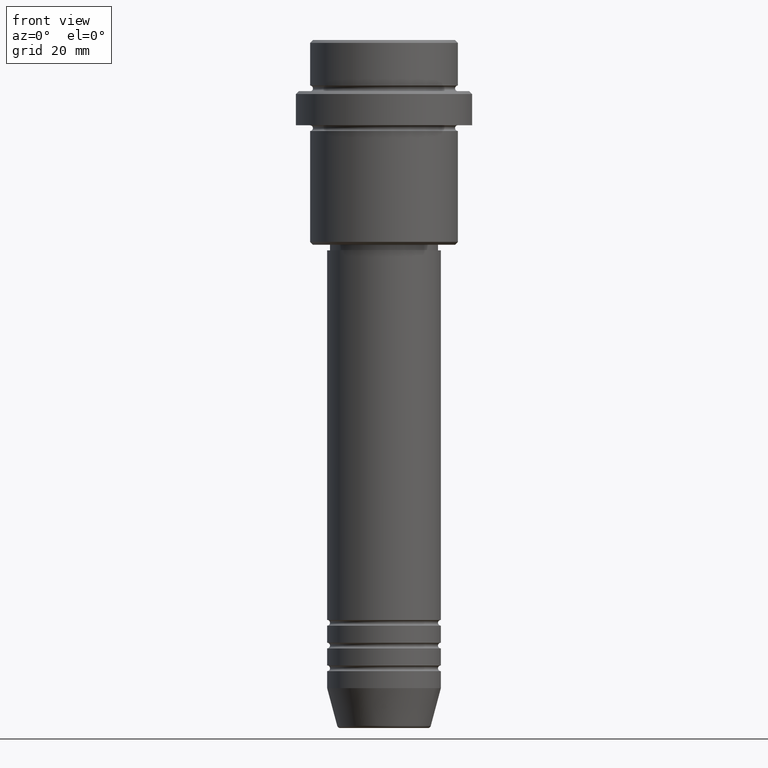
[diagram: clean part render]
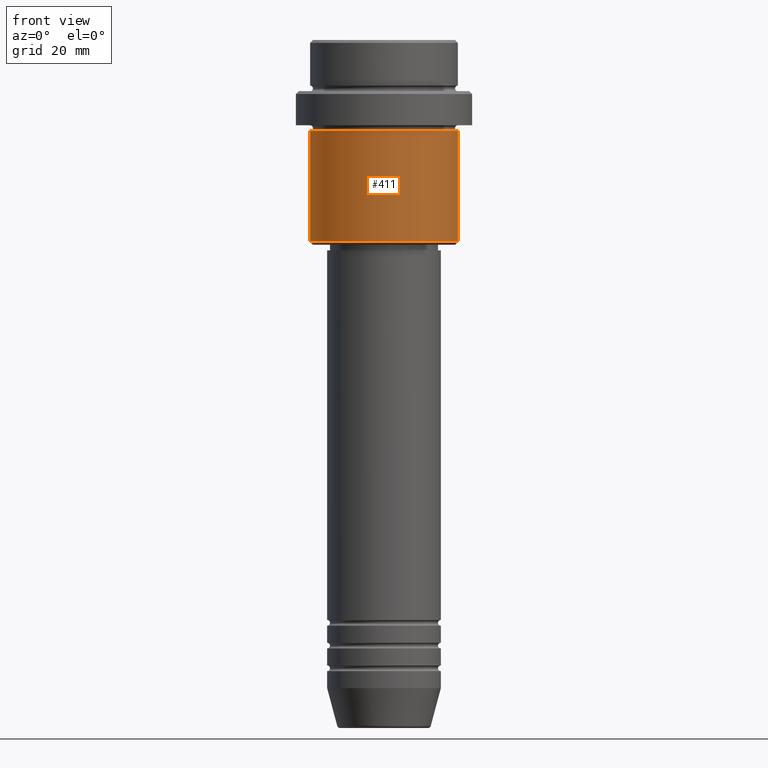
[diagram: same view with one face highlighted and labeled with its STEP entity id]
A machine part, front view. The second image highlights one B-rep face of the part: STEP entity #411.
In plain terms, the highlighted cylindrical surface (partial cylindrical patch) has radius 13 mm, axis along (-0, -0, 1).
Its self-contained STEP definition (entity closure, byte-faithful):
#11 = CARTESIAN_POINT ( 'NONE',  ( -13.00000000000000000, 1.592040838891559095E-15, -35.49999999999999289 ) ) ;
#107 = DIRECTION ( 'NONE',  ( -0.000000000000000000, -0.000000000000000000, 1.000000000000000000 ) ) ;
#114 = VERTEX_POINT ( 'NONE', #925 ) ;
#139 = CARTESIAN_POINT ( 'NONE',  ( 0.000000000000000000, 0.000000000000000000, 0.000000000000000000 ) ) ;
#150 = AXIS2_PLACEMENT_3D ( 'NONE', #579, #403, #600 ) ;
#180 = VERTEX_POINT ( 'NONE', #427 ) ;
#268 = DIRECTION ( 'NONE',  ( -0.000000000000000000, -0.000000000000000000, 1.000000000000000000 ) ) ;
#374 = CARTESIAN_POINT ( 'NONE',  ( -13.00000000000000000, 1.592040838891559095E-15, 0.000000000000000000 ) ) ;
#390 = DIRECTION ( 'NONE',  ( -0.000000000000000000, -0.000000000000000000, 1.000000000000000000 ) ) ;
#391 = ORIENTED_EDGE ( 'NONE', *, *, #920, .F. ) ;
#403 = DIRECTION ( 'NONE',  ( -0.000000000000000000, -0.000000000000000000, 1.000000000000000000 ) ) ;
#411 = ADVANCED_FACE ( 'NONE', ( #1229 ), #1030, .T. ) ;
#427 = CARTESIAN_POINT ( 'NONE',  ( 13.00000000000000000, 0.000000000000000000, -16.00000000000000000 ) ) ;
#431 = VECTOR ( 'NONE', #107, 1000.000000000000000 ) ;
#550 = ORIENTED_EDGE ( 'NONE', *, *, #1386, .F. ) ;
#553 = EDGE_LOOP ( 'NONE', ( #391, #1402, #884, #550 ) ) ;
#565 = VERTEX_POINT ( 'NONE', #1169 ) ;
#579 = CARTESIAN_POINT ( 'NONE',  ( 0.000000000000000000, 0.000000000000000000, -35.49999999999999289 ) ) ;
#600 = DIRECTION ( 'NONE',  ( -1.000000000000000000, 0.000000000000000000, 0.000000000000000000 ) ) ;
#682 = AXIS2_PLACEMENT_3D ( 'NONE', #139, #268, #1380 ) ;
#727 = AXIS2_PLACEMENT_3D ( 'NONE', #1271, #390, #1397 ) ;
#860 = CARTESIAN_POINT ( 'NONE',  ( 13.00000000000000000, 0.000000000000000000, 0.000000000000000000 ) ) ;
#884 = ORIENTED_EDGE ( 'NONE', *, *, #1093, .T. ) ;
#920 = EDGE_CURVE ( 'NONE', #1096, #565, #1378, .T. ) ;
#925 = CARTESIAN_POINT ( 'NONE',  ( 13.00000000000000000, 0.000000000000000000, -35.49999999999999289 ) ) ;
#962 = EDGE_CURVE ( 'NONE', #1096, #114, #1008, .T. ) ;
#1008 = CIRCLE ( 'NONE', #150, 13.00000000000000000 ) ;
#1030 = CYLINDRICAL_SURFACE ( 'NONE', #682, 13.00000000000000000 ) ;
#1083 = LINE ( 'NONE', #860, #431 ) ;
#1093 = EDGE_CURVE ( 'NONE', #114, #180, #1083, .T. ) ;
#1096 = VERTEX_POINT ( 'NONE', #11 ) ;
#1169 = CARTESIAN_POINT ( 'NONE',  ( -13.00000000000000000, 1.592040838891559095E-15, -16.00000000000000000 ) ) ;
#1224 = VECTOR ( 'NONE', #1385, 1000.000000000000000 ) ;
#1229 = FACE_OUTER_BOUND ( 'NONE', #553, .T. ) ;
#1247 = CIRCLE ( 'NONE', #727, 13.00000000000000000 ) ;
#1271 = CARTESIAN_POINT ( 'NONE',  ( 0.000000000000000000, 0.000000000000000000, -16.00000000000000000 ) ) ;
#1378 = LINE ( 'NONE', #374, #1224 ) ;
#1380 = DIRECTION ( 'NONE',  ( 1.000000000000000000, 0.000000000000000000, 0.000000000000000000 ) ) ;
#1385 = DIRECTION ( 'NONE',  ( -0.000000000000000000, -0.000000000000000000, 1.000000000000000000 ) ) ;
#1386 = EDGE_CURVE ( 'NONE', #565, #180, #1247, .T. ) ;
#1397 = DIRECTION ( 'NONE',  ( 1.000000000000000000, 0.000000000000000000, 0.000000000000000000 ) ) ;
#1402 = ORIENTED_EDGE ( 'NONE', *, *, #962, .T. ) ;